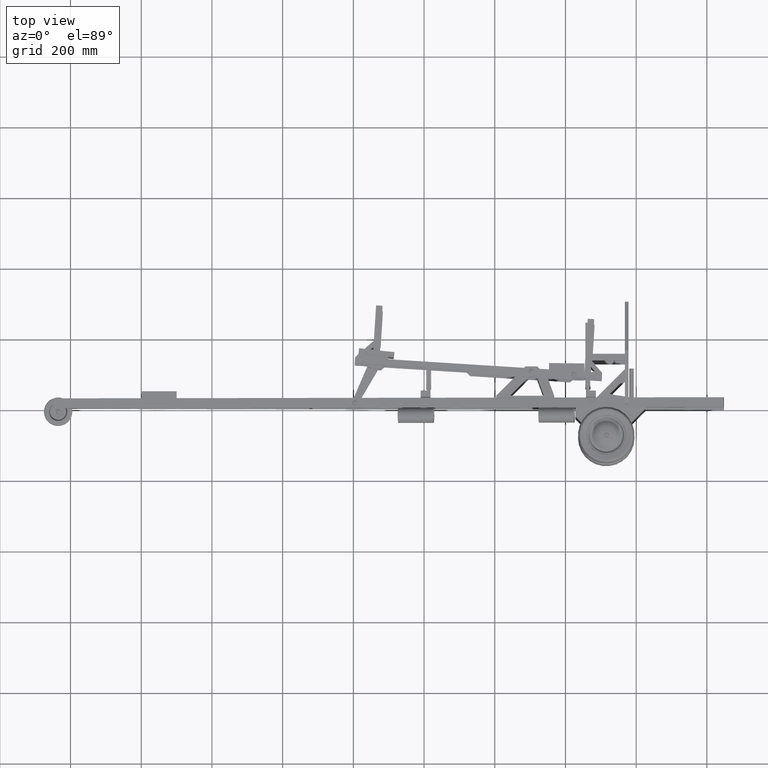
[diagram: clean part render]
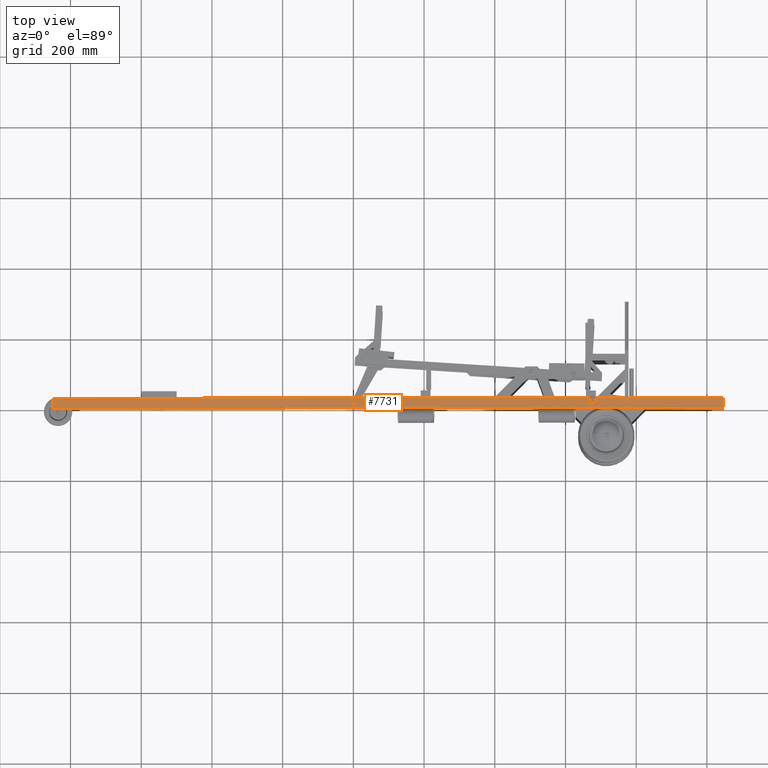
[diagram: same view with one face highlighted and labeled with its STEP entity id]
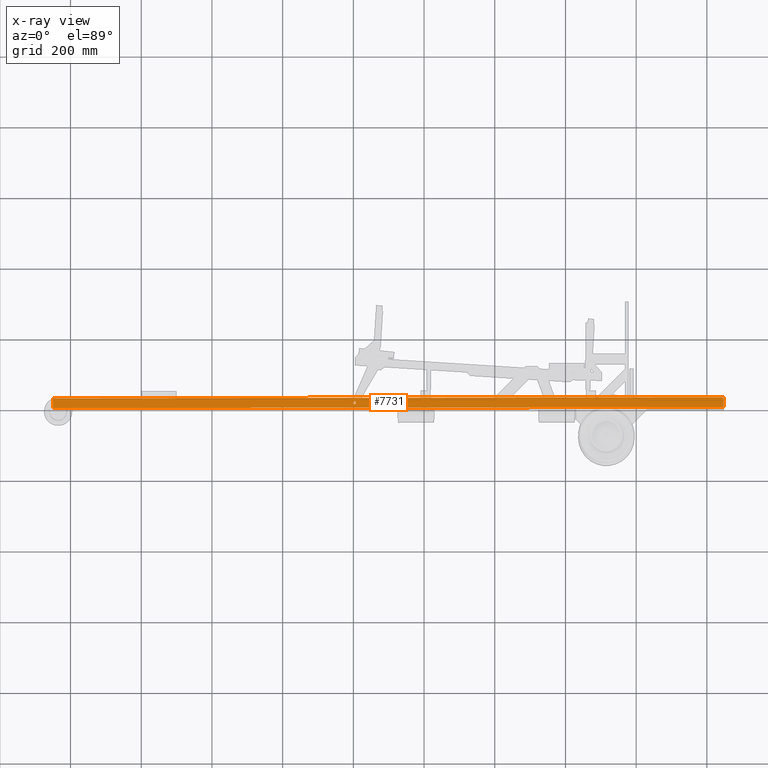
[diagram: x-ray of the same camera — body ghosted, the highlighted face saturated]
A machine part, top view. The second image highlights one B-rep face of the part: STEP entity #7731.
The next image is the same camera in x-ray: the body ghosted, the highlighted face saturated — about 0% of this face is hidden behind the body in this view.
In plain terms, the highlighted planar face has unit normal (0.1027, 0, -0.9947).
Its self-contained STEP definition (entity closure, byte-faithful):
#917 = EDGE_CURVE ( 'NONE', #7373, #7372, #1764, .T. ) ;
#918 = EDGE_CURVE ( 'NONE', #7380, #7381, #10037, .T. ) ;
#924 = EDGE_CURVE ( 'NONE', #7374, #7375, #10055, .T. ) ;
#935 = EDGE_CURVE ( 'NONE', #7385, #7374, #4987, .T. ) ;
#988 = EDGE_CURVE ( 'NONE', #7417, #7385, #5101, .T. ) ;
#992 = EDGE_CURVE ( 'NONE', #7420, #7421, #5087, .T. ) ;
#996 = EDGE_CURVE ( 'NONE', #7375, #7380, #5115, .T. ) ;
#997 = EDGE_CURVE ( 'NONE', #7372, #7373, #1759, .T. ) ;
#998 = EDGE_CURVE ( 'NONE', #7417, #7420, #5112, .T. ) ;
#1000 = EDGE_CURVE ( 'NONE', #7421, #7381, #5122, .T. ) ;
#1759 =( BOUNDED_CURVE ( )  B_SPLINE_CURVE ( 3, ( #4246, #4249, #4250, #4251 ),
 .UNSPECIFIED., .F., .F. ) 
 B_SPLINE_CURVE_WITH_KNOTS ( ( 4, 4 ),
 ( 3.141592653589793100, 6.283185307179586200 ),
 .UNSPECIFIED. ) 
 CURVE ( )  GEOMETRIC_REPRESENTATION_ITEM ( )  RATIONAL_B_SPLINE_CURVE ( ( 1.000000000000000000, 0.3333333333333333700, 0.3333333333333333700, 1.000000000000000000 ) ) 
 REPRESENTATION_ITEM ( '' )  );
#1764 =( BOUNDED_CURVE ( )  B_SPLINE_CURVE ( 3, ( #4061, #4081, #4082, #4083 ),
 .UNSPECIFIED., .F., .T. ) 
 B_SPLINE_CURVE_WITH_KNOTS ( ( 4, 4 ),
 ( 0.0000000000000000000, 3.141592653589793100 ),
 .UNSPECIFIED. ) 
 CURVE ( )  GEOMETRIC_REPRESENTATION_ITEM ( )  RATIONAL_B_SPLINE_CURVE ( ( 1.000000000000000000, 0.3333333333333333700, 0.3333333333333333700, 1.000000000000000000 ) ) 
 REPRESENTATION_ITEM ( '' )  );
#4061 = CARTESIAN_POINT ( 'NONE',  ( 807.4539503963831100, 14.00000000000000000, 138.5272191612469900 ) ) ;
#4080 = CARTESIAN_POINT ( 'NONE',  ( -50.00000000000004300, 28.00000000000000000, 50.00000000000000000 ) ) ;
#4081 = CARTESIAN_POINT ( 'NONE',  ( 807.4539503963832200, 6.000000000000017800, 138.5272191612469600 ) ) ;
#4082 = CARTESIAN_POINT ( 'NONE',  ( 799.4539503963831100, 6.000000000000017800, 137.7012648893440000 ) ) ;
#4083 = CARTESIAN_POINT ( 'NONE',  ( 799.4539503963831100, 14.00000000000000000, 137.7012648893439700 ) ) ;
#4084 = DIRECTION ( 'NONE',  ( 0.9947125423363353300, 0.0000000000000000000, 0.1026983842072708800 ) ) ;
#4095 = CARTESIAN_POINT ( 'NONE',  ( -50.00000000000004300, 28.00000000000000000, 50.00000000000000000 ) ) ;
#4098 = DIRECTION ( 'NONE',  ( 0.9947125423363353300, 0.0000000000000000000, 0.1026983842072708800 ) ) ;
#4113 = CARTESIAN_POINT ( 'NONE',  ( -50.00000000000004300, 28.00000000000000000, 50.00000000000000000 ) ) ;
#4120 = DIRECTION ( 'NONE',  ( 0.9947125423363353300, 0.0000000000000000000, 0.1026983842072708800 ) ) ;
#4223 = CARTESIAN_POINT ( 'NONE',  ( -50.00000000000004300, 0.0000000000000000000, 50.00000000000000000 ) ) ;
#4229 = CARTESIAN_POINT ( 'NONE',  ( -50.00000000000004300, 28.00000000000000000, 50.00000000000000000 ) ) ;
#4230 = DIRECTION ( 'NONE',  ( 0.9947125423363353300, 0.0000000000000000000, 0.1026983842072708800 ) ) ;
#4238 = DIRECTION ( 'NONE',  ( 0.9947125423363353300, 0.0000000000000000000, 0.1026983842072708800 ) ) ;
#4246 = CARTESIAN_POINT ( 'NONE',  ( 799.4539503963831100, 14.00000000000000000, 137.7012648893439700 ) ) ;
#4247 = CARTESIAN_POINT ( 'NONE',  ( -50.00000000000004300, 28.00000000000000000, 50.00000000000000000 ) ) ;
#4248 = DIRECTION ( 'NONE',  ( 0.9947125423363353300, 0.0000000000000000000, 0.1026983842072708800 ) ) ;
#4249 = CARTESIAN_POINT ( 'NONE',  ( 799.4539503963831100, 21.99999999999998600, 137.7012648893440000 ) ) ;
#4250 = CARTESIAN_POINT ( 'NONE',  ( 807.4539503963832200, 21.99999999999998600, 138.5272191612469600 ) ) ;
#4251 = CARTESIAN_POINT ( 'NONE',  ( 807.4539503963831100, 14.00000000000000000, 138.5272191612469900 ) ) ;
#4253 = CARTESIAN_POINT ( 'NONE',  ( -50.00000000000004300, 28.00000000000000000, 50.00000000000000000 ) ) ;
#4254 = DIRECTION ( 'NONE',  ( -0.0000000000000000000, -1.000000000000000000, -0.0000000000000000000 ) ) ;
#4257 = CARTESIAN_POINT ( 'NONE',  ( 1846.565191785169600, -304.1883561386446800, 245.8095152621831700 ) ) ;
#4258 = DIRECTION ( 'NONE',  ( 0.0000000000000000000, 1.000000000000000000, 0.0000000000000000000 ) ) ;
#4979 = VECTOR ( 'NONE', #4098, 1000.000000000000000 ) ;
#4987 = LINE ( 'NONE', #4113, #5000 ) ;
#5000 = VECTOR ( 'NONE', #4120, 1000.000000000000000 ) ;
#5087 = LINE ( 'NONE', #4223, #5109 ) ;
#5101 = LINE ( 'NONE', #4229, #5102 ) ;
#5102 = VECTOR ( 'NONE', #4230, 1000.000000000000000 ) ;
#5109 = VECTOR ( 'NONE', #4238, 1000.000000000000000 ) ;
#5112 = LINE ( 'NONE', #4253, #5119 ) ;
#5115 = LINE ( 'NONE', #4247, #5116 ) ;
#5116 = VECTOR ( 'NONE', #4248, 1000.000000000000000 ) ;
#5119 = VECTOR ( 'NONE', #4254, 1000.000000000000000 ) ;
#5122 = LINE ( 'NONE', #4257, #5123 ) ;
#5123 = VECTOR ( 'NONE', #4258, 1000.000000000000000 ) ;
#7372 = VERTEX_POINT ( 'NONE', #24431 ) ;
#7373 = VERTEX_POINT ( 'NONE', #24432 ) ;
#7374 = VERTEX_POINT ( 'NONE', #24433 ) ;
#7375 = VERTEX_POINT ( 'NONE', #24434 ) ;
#7380 = VERTEX_POINT ( 'NONE', #24439 ) ;
#7381 = VERTEX_POINT ( 'NONE', #24440 ) ;
#7385 = VERTEX_POINT ( 'NONE', #24444 ) ;
#7417 = VERTEX_POINT ( 'NONE', #24476 ) ;
#7420 = VERTEX_POINT ( 'NONE', #24479 ) ;
#7421 = VERTEX_POINT ( 'NONE', #24480 ) ;
#7731 = ADVANCED_FACE ( 'NONE', ( #25387, #25389 ), #26250, .F. ) ;
#8758 = EDGE_LOOP ( 'NONE', ( #9367, #9368 ) ) ;
#8766 = EDGE_LOOP ( 'NONE', ( #9369, #9370, #9371, #9372, #9373, #9374, #9375, #9376 ) ) ;
#9367 = ORIENTED_EDGE ( 'NONE', *, *, #917, .T. ) ;
#9368 = ORIENTED_EDGE ( 'NONE', *, *, #997, .T. ) ;
#9369 = ORIENTED_EDGE ( 'NONE', *, *, #992, .T. ) ;
#9370 = ORIENTED_EDGE ( 'NONE', *, *, #1000, .T. ) ;
#9371 = ORIENTED_EDGE ( 'NONE', *, *, #918, .F. ) ;
#9372 = ORIENTED_EDGE ( 'NONE', *, *, #996, .F. ) ;
#9373 = ORIENTED_EDGE ( 'NONE', *, *, #924, .F. ) ;
#9374 = ORIENTED_EDGE ( 'NONE', *, *, #935, .F. ) ;
#9375 = ORIENTED_EDGE ( 'NONE', *, *, #988, .F. ) ;
#9376 = ORIENTED_EDGE ( 'NONE', *, *, #998, .T. ) ;
#10033 = VECTOR ( 'NONE', #4084, 1000.000000000000000 ) ;
#10037 = LINE ( 'NONE', #4080, #10033 ) ;
#10055 = LINE ( 'NONE', #4095, #4979 ) ;
#24431 = CARTESIAN_POINT ( 'NONE',  ( 799.4539503963831100, 14.00000000000000000, 137.7012648893439700 ) ) ;
#24432 = CARTESIAN_POINT ( 'NONE',  ( 807.4539503963831100, 14.00000000000000000, 138.5272191612469900 ) ) ;
#24433 = CARTESIAN_POINT ( 'NONE',  ( 1008.169791968910500, 28.00000000000000000, 159.2499825094257900 ) ) ;
#24434 = CARTESIAN_POINT ( 'NONE',  ( 1468.169791968910400, 28.00000000000000000, 206.7423531438469700 ) ) ;
#24439 = CARTESIAN_POINT ( 'NONE',  ( 1486.169791968910200, 28.00000000000000000, 208.6007502556286400 ) ) ;
#24440 = CARTESIAN_POINT ( 'NONE',  ( 1846.565191785169600, 28.00000000000000000, 245.8095152621831700 ) ) ;
#24444 = CARTESIAN_POINT ( 'NONE',  ( 990.1697919689105400, 28.00000000000000000, 157.3915853976440400 ) ) ;
#24476 = CARTESIAN_POINT ( 'NONE',  ( -50.00000000000004300, 28.00000000000000000, 50.00000000000000000 ) ) ;
#24479 = CARTESIAN_POINT ( 'NONE',  ( -50.00000000000004300, 0.0000000000000000000, 50.00000000000000000 ) ) ;
#24480 = CARTESIAN_POINT ( 'NONE',  ( 1846.565191785169600, 0.0000000000000000000, 245.8095152621831700 ) ) ;
#25387 = FACE_BOUND ( 'NONE', #8758, .T. ) ;
#25389 = FACE_OUTER_BOUND ( 'NONE', #8766, .T. ) ;
#25916 = AXIS2_PLACEMENT_3D ( 'NONE', #26251, #26256, #26257 ) ;
#26250 = PLANE ( 'NONE',  #25916 ) ;
#26251 = CARTESIAN_POINT ( 'NONE',  ( -50.00000000000004300, 28.00000000000000000, 50.00000000000000000 ) ) ;
#26256 = DIRECTION ( 'NONE',  ( 0.1026983842072708800, 0.0000000000000000000, -0.9947125423363353300 ) ) ;
#26257 = DIRECTION ( 'NONE',  ( -0.9947125423363353300, 0.0000000000000000000, -0.1026983842072708800 ) ) ;